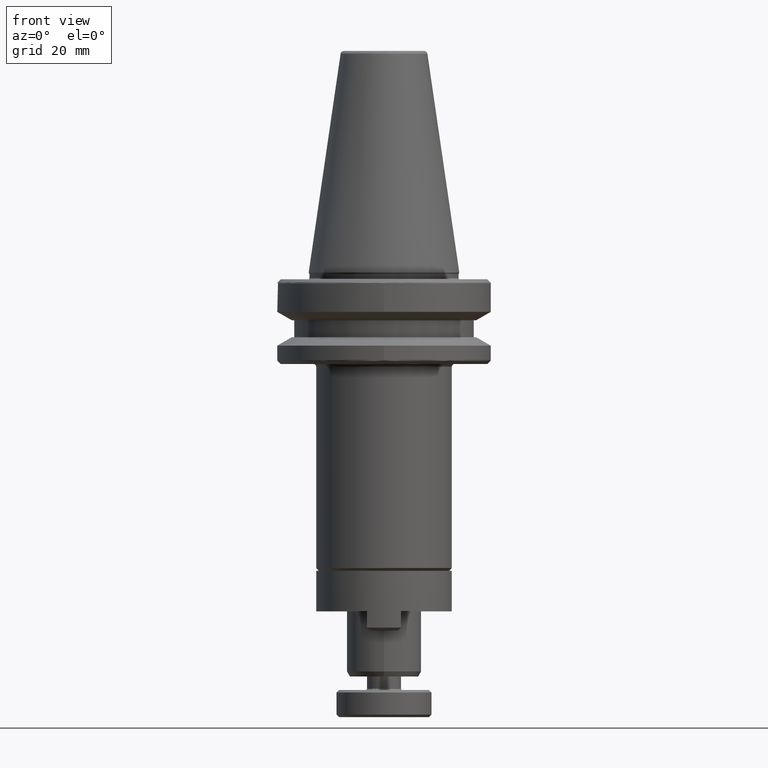
[diagram: clean part render]
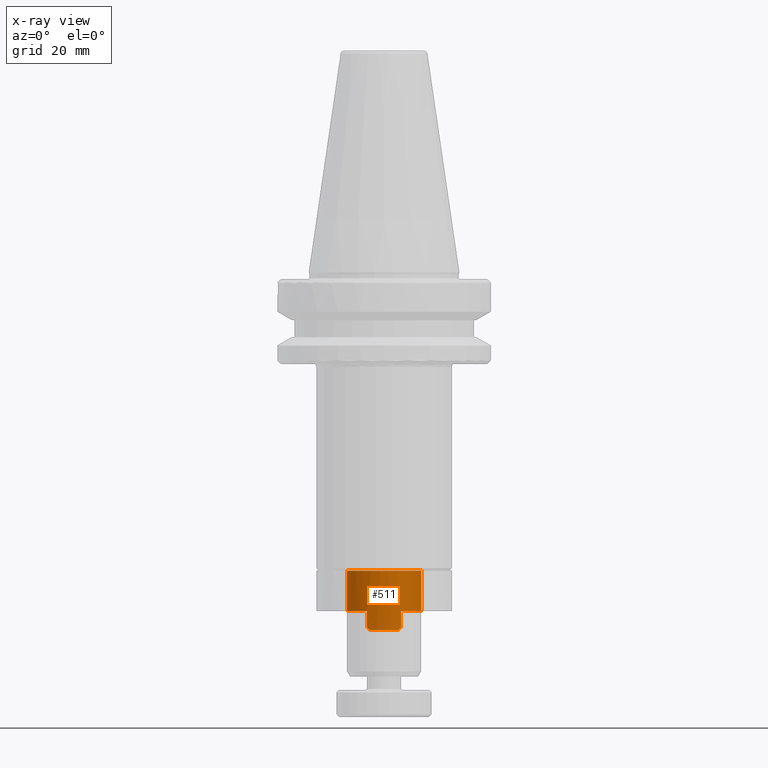
[diagram: x-ray — body ghosted, one internal face saturated and labeled with its STEP entity id]
A machine part, front view, then the same camera in x-ray: the body is ghosted and one INTERNAL B-rep face — a face not visible from any outside direction — is saturated and labeled: STEP entity #511.
In plain terms, the highlighted cylindrical surface (partial cylindrical patch) has radius 11 mm, axis along (0, -0, 1).
Its self-contained STEP definition (entity closure, byte-faithful):
#70 = DIRECTION ( 'NONE',  ( 1.000000000000000000, 0.0000000000000000000, 0.0000000000000000000 ) ) ;
#101 = DIRECTION ( 'NONE',  ( 1.000000000000000000, 0.0000000000000000000, 0.0000000000000000000 ) ) ;
#112 = LINE ( 'NONE', #3654, #207 ) ;
#126 = CARTESIAN_POINT ( 'NONE',  ( -11.00000000000000000, -7.172811494646091200E-014, -81.76158881059203100 ) ) ;
#182 = AXIS2_PLACEMENT_3D ( 'NONE', #922, #1421, #2342 ) ;
#187 = CARTESIAN_POINT ( 'NONE',  ( -4.200000000000000200, -10.16661202171114000, -99.36158881059202500 ) ) ;
#207 = VECTOR ( 'NONE', #3096, 1000.000000000000000 ) ;
#241 = CARTESIAN_POINT ( 'NONE',  ( 5.000000003288851900, -9.797958969454450400, -90.56158881059202800 ) ) ;
#347 = CARTESIAN_POINT ( 'NONE',  ( 11.00000000000000000, -7.307522642552299900E-014, -93.76158881379203100 ) ) ;
#379 = AXIS2_PLACEMENT_3D ( 'NONE', #2021, #1527, #3211 ) ;
#412 = VECTOR ( 'NONE', #1147, 1000.000000000000000 ) ;
#459 = VERTEX_POINT ( 'NONE', #2809 ) ;
#492 = EDGE_CURVE ( 'NONE', #1763, #1756, #2775, .T. ) ;
#505 = CARTESIAN_POINT ( 'NONE',  ( -5.000000001029251400, -9.797958970607545800, -90.56158881059202800 ) ) ;
#507 = LINE ( 'NONE', #505, #412 ) ;
#511 = ADVANCED_FACE ( 'NONE', ( #643 ), #2356, .F. ) ;
#587 = CARTESIAN_POINT ( 'NONE',  ( -11.00000000000000000, -7.172811494646091200E-014, -93.76158881379203100 ) ) ;
#602 = CIRCLE ( 'NONE', #2045, 11.00000000000000000 ) ;
#625 = DIRECTION ( 'NONE',  ( 0.0000000000000000000, -0.0000000000000000000, 1.000000000000000000 ) ) ;
#643 = FACE_OUTER_BOUND ( 'NONE', #2212, .T. ) ;
#667 = CARTESIAN_POINT ( 'NONE',  ( 4.738327430396460600, -9.931493195190553200, -98.82326138019556100 ) ) ;
#675 = EDGE_CURVE ( 'NONE', #3709, #459, #2312, .T. ) ;
#677 = CARTESIAN_POINT ( 'NONE',  ( 4.200000000000000200, -10.16661202171114000, -99.36158881059202500 ) ) ;
#764 = CARTESIAN_POINT ( 'NONE',  ( -4.471518130749025500, -10.05444327299617100, -99.09007067984300900 ) ) ;
#805 = VERTEX_POINT ( 'NONE', #347 ) ;
#922 = CARTESIAN_POINT ( 'NONE',  ( 0.0000000000000000000, -7.307522642552299900E-014, -99.36158881059202500 ) ) ;
#993 = AXIS2_PLACEMENT_3D ( 'NONE', #2786, #1040, #2509 ) ;
#1040 = DIRECTION ( 'NONE',  ( 0.0000000000000000000, -0.0000000000000000000, 1.000000000000000000 ) ) ;
#1147 = DIRECTION ( 'NONE',  ( 0.0000000000000000000, 0.0000000000000000000, 1.000000000000000000 ) ) ;
#1214 = CARTESIAN_POINT ( 'NONE',  ( -5.000000000257312400, -9.797958970870164200, -93.76158881219203100 ) ) ;
#1274 = ORIENTED_EDGE ( 'NONE', *, *, #675, .F. ) ;
#1329 = EDGE_CURVE ( 'NONE', #1460, #459, #1491, .T. ) ;
#1378 = EDGE_CURVE ( 'NONE', #1756, #1908, #507, .T. ) ;
#1392 = VERTEX_POINT ( 'NONE', #587 ) ;
#1421 = DIRECTION ( 'NONE',  ( -0.0000000000000000000, 0.0000000000000000000, -1.000000000000000000 ) ) ;
#1460 = VERTEX_POINT ( 'NONE', #3754 ) ;
#1491 = LINE ( 'NONE', #241, #3480 ) ;
#1527 = DIRECTION ( 'NONE',  ( -0.0000000000000000000, 0.0000000000000000000, -1.000000000000000000 ) ) ;
#1555 = CARTESIAN_POINT ( 'NONE',  ( 4.471518131140108200, -10.05444327283460700, -99.09007067945191200 ) ) ;
#1596 = ORIENTED_EDGE ( 'NONE', *, *, #2560, .T. ) ;
#1614 = CARTESIAN_POINT ( 'NONE',  ( -5.000000000514625700, -9.797958970870164200, -98.56158881007739600 ) ) ;
#1756 = VERTEX_POINT ( 'NONE', #3403 ) ;
#1763 = VERTEX_POINT ( 'NONE', #2627 ) ;
#1789 = AXIS2_PLACEMENT_3D ( 'NONE', #3166, #625, #101 ) ;
#1791 = DIRECTION ( 'NONE',  ( -0.0000000000000000000, 0.0000000000000000000, -1.000000000000000000 ) ) ;
#1794 = ORIENTED_EDGE ( 'NONE', *, *, #1378, .T. ) ;
#1906 = ORIENTED_EDGE ( 'NONE', *, *, #2093, .T. ) ;
#1908 = VERTEX_POINT ( 'NONE', #1214 ) ;
#1933 = ORIENTED_EDGE ( 'NONE', *, *, #1960, .T. ) ;
#1960 = EDGE_CURVE ( 'NONE', #3624, #2183, #2284, .T. ) ;
#2021 = CARTESIAN_POINT ( 'NONE',  ( 0.0000000000000000000, -7.307522642552299900E-014, -93.76158881379203100 ) ) ;
#2045 = AXIS2_PLACEMENT_3D ( 'NONE', #3519, #1791, #70 ) ;
#2082 = EDGE_CURVE ( 'NONE', #3709, #1763, #2508, .T. ) ;
#2093 = EDGE_CURVE ( 'NONE', #1908, #1392, #2425, .T. ) ;
#2153 = DIRECTION ( 'NONE',  ( 0.0000000000000000000, -0.0000000000000000000, 1.000000000000000000 ) ) ;
#2183 = VERTEX_POINT ( 'NONE', #2494 ) ;
#2212 = EDGE_LOOP ( 'NONE', ( #1906, #3007, #1933, #3658, #1596, #2270, #1274, #2651, #2829, #1794 ) ) ;
#2220 = VECTOR ( 'NONE', #2153, 1000.000000000000000 ) ;
#2270 = ORIENTED_EDGE ( 'NONE', *, *, #1329, .T. ) ;
#2284 = CIRCLE ( 'NONE', #1789, 11.00000000000000000 ) ;
#2312 =( BOUNDED_CURVE ( )  B_SPLINE_CURVE ( 3, ( #677, #1555, #667, #2411 ),
 .UNSPECIFIED., .F., .F. ) 
 B_SPLINE_CURVE_WITH_KNOTS ( ( 4, 4 ),
 ( 5.104151703087933500, 5.184250817832165100 ),
 .UNSPECIFIED. ) 
 CURVE ( )  GEOMETRIC_REPRESENTATION_ITEM ( )  RATIONAL_B_SPLINE_CURVE ( ( 1.000000000000000000, 0.9994654157784529400, 0.9994654157784529400, 1.000000000000000000 ) ) 
 REPRESENTATION_ITEM ( '' )  );
#2342 = DIRECTION ( 'NONE',  ( 1.000000000000000000, 0.0000000000000000000, 0.0000000000000000000 ) ) ;
#2356 = CYLINDRICAL_SURFACE ( 'NONE', #993, 11.00000000000000000 ) ;
#2411 = CARTESIAN_POINT ( 'NONE',  ( 5.000000001644425900, -9.797958970293617400, -98.56158880894760400 ) ) ;
#2425 = CIRCLE ( 'NONE', #379, 11.00000000000000000 ) ;
#2494 = CARTESIAN_POINT ( 'NONE',  ( 11.00000000000000000, -7.307522642552299900E-014, -81.76158881059203100 ) ) ;
#2505 = LINE ( 'NONE', #3585, #2220 ) ;
#2508 = CIRCLE ( 'NONE', #182, 11.00000000000000000 ) ;
#2509 = DIRECTION ( 'NONE',  ( 1.000000000000000000, 0.0000000000000000000, 0.0000000000000000000 ) ) ;
#2560 = EDGE_CURVE ( 'NONE', #805, #1460, #602, .T. ) ;
#2627 = CARTESIAN_POINT ( 'NONE',  ( -4.200000000000000200, -10.16661202171114000, -99.36158881059202500 ) ) ;
#2651 = ORIENTED_EDGE ( 'NONE', *, *, #2082, .T. ) ;
#2775 =( BOUNDED_CURVE ( )  B_SPLINE_CURVE ( 3, ( #187, #764, #3633, #1614 ),
 .UNSPECIFIED., .F., .F. ) 
 B_SPLINE_CURVE_WITH_KNOTS ( ( 4, 4 ),
 ( 5.104151703087933500, 5.184250817716855600 ),
 .UNSPECIFIED. ) 
 CURVE ( )  GEOMETRIC_REPRESENTATION_ITEM ( )  RATIONAL_B_SPLINE_CURVE ( ( 1.000000000000000000, 0.9994654157799918200, 0.9994654157799918200, 1.000000000000000000 ) ) 
 REPRESENTATION_ITEM ( '' )  );
#2786 = CARTESIAN_POINT ( 'NONE',  ( 0.0000000000000000000, -7.307522642552299900E-014, -99.36158881059202500 ) ) ;
#2802 = EDGE_CURVE ( 'NONE', #805, #2183, #112, .T. ) ;
#2809 = CARTESIAN_POINT ( 'NONE',  ( 5.000000001644425900, -9.797958970293617400, -98.56158880894760400 ) ) ;
#2829 = ORIENTED_EDGE ( 'NONE', *, *, #492, .T. ) ;
#3007 = ORIENTED_EDGE ( 'NONE', *, *, #3251, .T. ) ;
#3096 = DIRECTION ( 'NONE',  ( 0.0000000000000000000, -0.0000000000000000000, 1.000000000000000000 ) ) ;
#3166 = CARTESIAN_POINT ( 'NONE',  ( 0.0000000000000000000, -7.307522642552299900E-014, -81.76158881059203100 ) ) ;
#3211 = DIRECTION ( 'NONE',  ( 1.000000000000000000, 0.0000000000000000000, 0.0000000000000000000 ) ) ;
#3242 = CARTESIAN_POINT ( 'NONE',  ( 4.200000000000000200, -10.16661202171114000, -99.36158881059202500 ) ) ;
#3251 = EDGE_CURVE ( 'NONE', #1392, #3624, #2505, .T. ) ;
#3403 = CARTESIAN_POINT ( 'NONE',  ( -5.000000000514625700, -9.797958970870164200, -98.56158881007739600 ) ) ;
#3480 = VECTOR ( 'NONE', #3710, 1000.000000000000000 ) ;
#3519 = CARTESIAN_POINT ( 'NONE',  ( 0.0000000000000000000, -7.307522642552299900E-014, -93.76158881379203100 ) ) ;
#3585 = CARTESIAN_POINT ( 'NONE',  ( -11.00000000000000000, -7.172811494646091200E-014, -99.36158881059202500 ) ) ;
#3624 = VERTEX_POINT ( 'NONE', #126 ) ;
#3633 = CARTESIAN_POINT ( 'NONE',  ( -4.738327429628166800, -9.931493195544590000, -98.82326138096385600 ) ) ;
#3654 = CARTESIAN_POINT ( 'NONE',  ( 11.00000000000000000, -7.307522642552299900E-014, -99.36158881059202500 ) ) ;
#3658 = ORIENTED_EDGE ( 'NONE', *, *, #2802, .F. ) ;
#3709 = VERTEX_POINT ( 'NONE', #3242 ) ;
#3710 = DIRECTION ( 'NONE',  ( -0.0000000000000000000, -0.0000000000000000000, -1.000000000000000000 ) ) ;
#3754 = CARTESIAN_POINT ( 'NONE',  ( 5.000000000822213400, -9.797958970293617400, -93.76158881219203100 ) ) ;